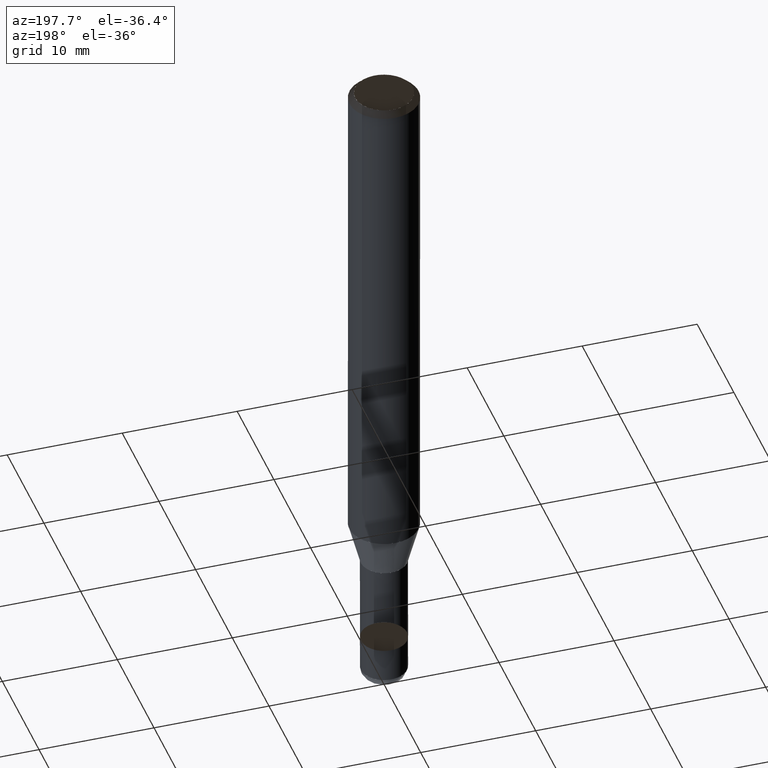
[diagram: clean part render]
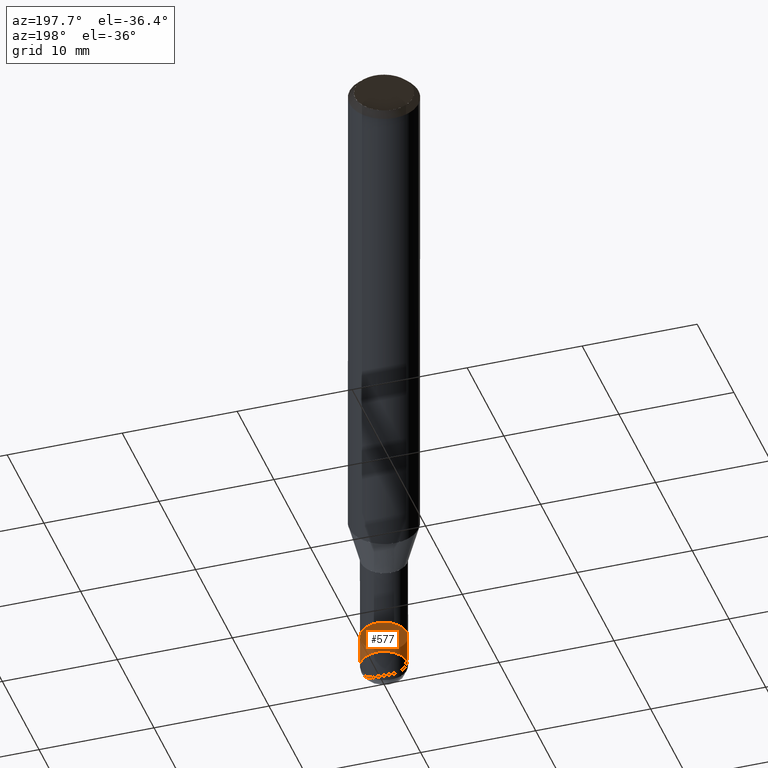
[diagram: same view with one face highlighted and labeled with its STEP entity id]
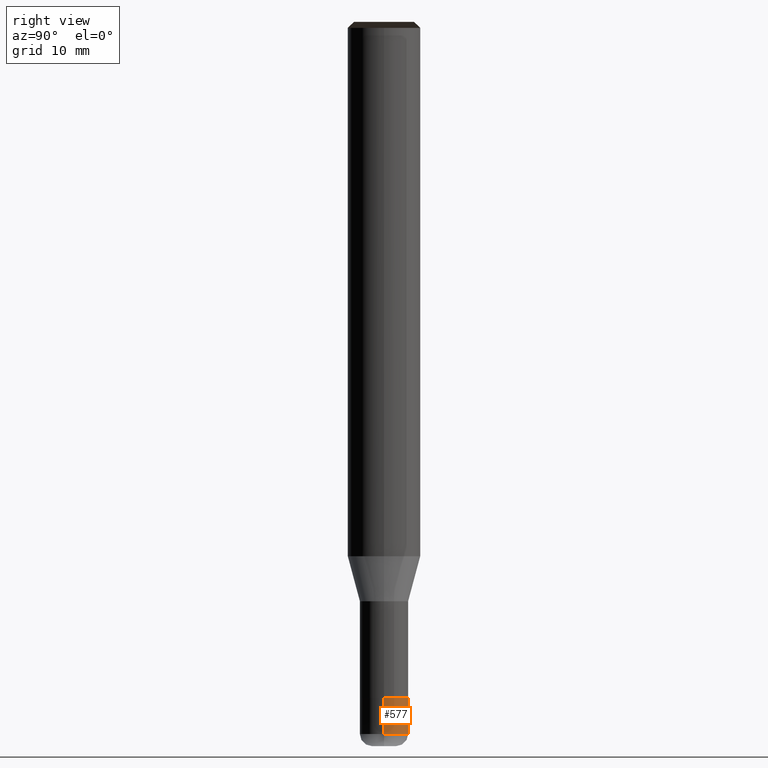
[diagram: same view with one face highlighted and labeled with its STEP entity id]
A machine part, auxiliary view. The second image highlights one B-rep face of the part: STEP entity #577.
A second angle (right view) of the same face is appended — the face is thin or edge-on in the first view.
In plain terms, the highlighted face is a freeform B-spline surface patch.
Its self-contained STEP definition (entity closure, byte-faithful):
#459=CARTESIAN_POINT('',(2.0,0.0,-14.732050807569));
#460=CARTESIAN_POINT('',(2.0,2.0,-14.732050807569));
#461=CARTESIAN_POINT('',(0.0,2.0,-14.732050807569));
#462=CARTESIAN_POINT('',(-2.0,2.0,-14.732050807569));
#463=CARTESIAN_POINT('',(-2.0,0.0,-14.732050807569));
#464=CARTESIAN_POINT('',(2.0,0.0,-11.732050807569));
#465=CARTESIAN_POINT('',(2.0,2.0,-11.732050807569));
#466=CARTESIAN_POINT('',(0.0,2.0,-11.732050807569));
#467=CARTESIAN_POINT('',(-2.0,2.0,-11.732050807569));
#468=CARTESIAN_POINT('',(-2.0,0.0,-11.732050807569));
#558=(
BOUNDED_SURFACE()
B_SPLINE_SURFACE(1,2,(
(#459,#460,#461,#462,#463),
(#464,#465,#466,#467,#468)
), .UNSPECIFIED.,.F.,.F.,.F.)
B_SPLINE_SURFACE_WITH_KNOTS((2,2),(3,2,3),(
0.0,1.0),(
0.0,0.5,1.0), .UNSPECIFIED.)
GEOMETRIC_REPRESENTATION_ITEM()
RATIONAL_B_SPLINE_SURFACE(((1.0,0.707106781187,1.0,0.707106781187,1.0),
(1.0,0.707106781187,1.0,0.707106781187,1.0)
))
REPRESENTATION_ITEM('')
SURFACE()
);
#559=(
BOUNDED_CURVE()
B_SPLINE_CURVE(2,(#464,#465,#466,#467,#468),.UNSPECIFIED.,.F.,.F.)
B_SPLINE_CURVE_WITH_KNOTS((3,2,3),
(0.0,0.5,1.0),.UNSPECIFIED.)
CURVE()
GEOMETRIC_REPRESENTATION_ITEM()
RATIONAL_B_SPLINE_CURVE((1.0,0.707106781187,1.0,0.707106781187,1.0))
REPRESENTATION_ITEM('')
);
#560=(
BOUNDED_CURVE()
B_SPLINE_CURVE(1,(#468,#463),.UNSPECIFIED.,.F.,.F.)
B_SPLINE_CURVE_WITH_KNOTS((2,2),
(0.0,1.0),.UNSPECIFIED.)
CURVE()
GEOMETRIC_REPRESENTATION_ITEM()
RATIONAL_B_SPLINE_CURVE((1.0,1.0))
REPRESENTATION_ITEM('')
);
#561=(
BOUNDED_CURVE()
B_SPLINE_CURVE(2,(#463,#462,#461,#460,#459),.UNSPECIFIED.,.F.,.F.)
B_SPLINE_CURVE_WITH_KNOTS((3,2,3),
(0.0,0.5,1.0),.UNSPECIFIED.)
CURVE()
GEOMETRIC_REPRESENTATION_ITEM()
RATIONAL_B_SPLINE_CURVE((1.0,0.707106781187,1.0,0.707106781187,1.0))
REPRESENTATION_ITEM('')
);
#562=(
BOUNDED_CURVE()
B_SPLINE_CURVE(1,(#459,#464),.UNSPECIFIED.,.F.,.F.)
B_SPLINE_CURVE_WITH_KNOTS((2,2),
(0.0,1.0),.UNSPECIFIED.)
CURVE()
GEOMETRIC_REPRESENTATION_ITEM()
RATIONAL_B_SPLINE_CURVE((1.0,1.0))
REPRESENTATION_ITEM('')
);
#563=VERTEX_POINT('',#459);
#564=VERTEX_POINT('',#463);
#565=VERTEX_POINT('',#464);
#566=VERTEX_POINT('',#468);
#567=EDGE_CURVE('',#565,#566,#559,.T.);
#568=EDGE_CURVE('',#566,#564,#560,.T.);
#569=EDGE_CURVE('',#564,#563,#561,.T.);
#570=EDGE_CURVE('',#563,#565,#562,.T.);
#571=ORIENTED_EDGE('',*,*,#567,.T.);
#572=ORIENTED_EDGE('',*,*,#568,.T.);
#573=ORIENTED_EDGE('',*,*,#569,.T.);
#574=ORIENTED_EDGE('',*,*,#570,.T.);
#575=EDGE_LOOP('',(#571,#572,#573,#574));
#576=FACE_OUTER_BOUND('',#575,.T.);
#577=ADVANCED_FACE('',(#576),#558,.T.);